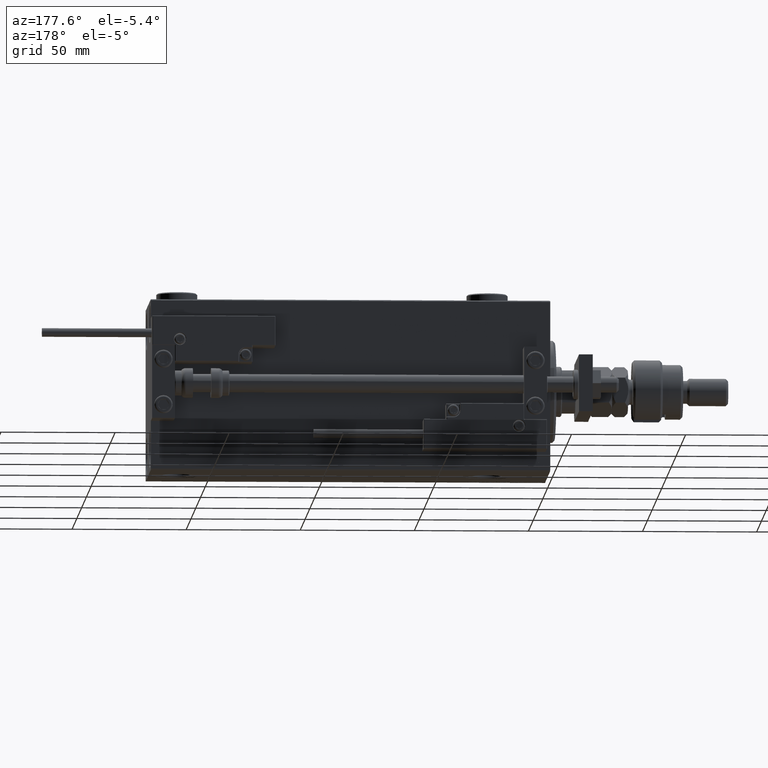
[diagram: clean part render]
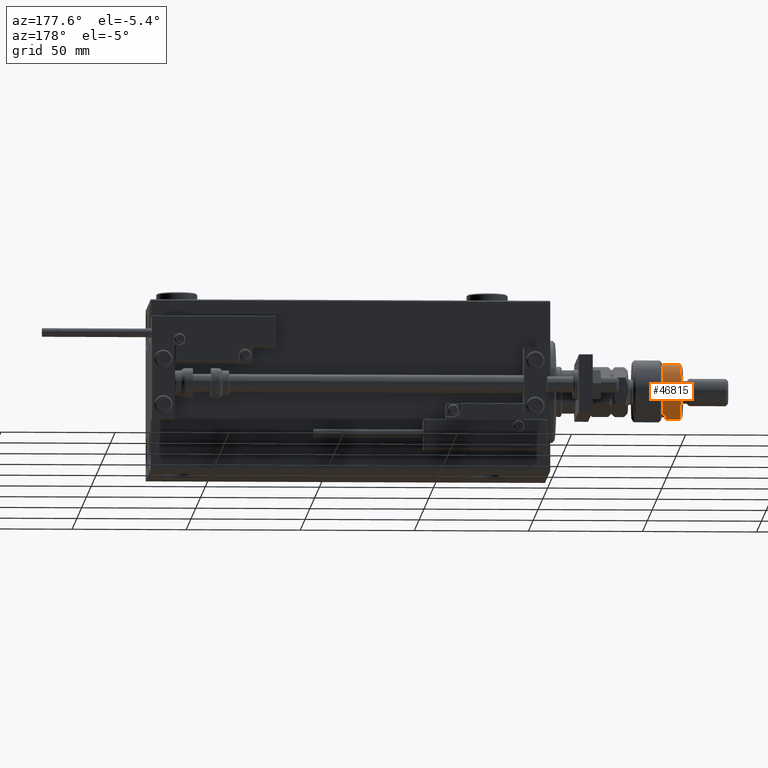
[diagram: same view with one face highlighted and labeled with its STEP entity id]
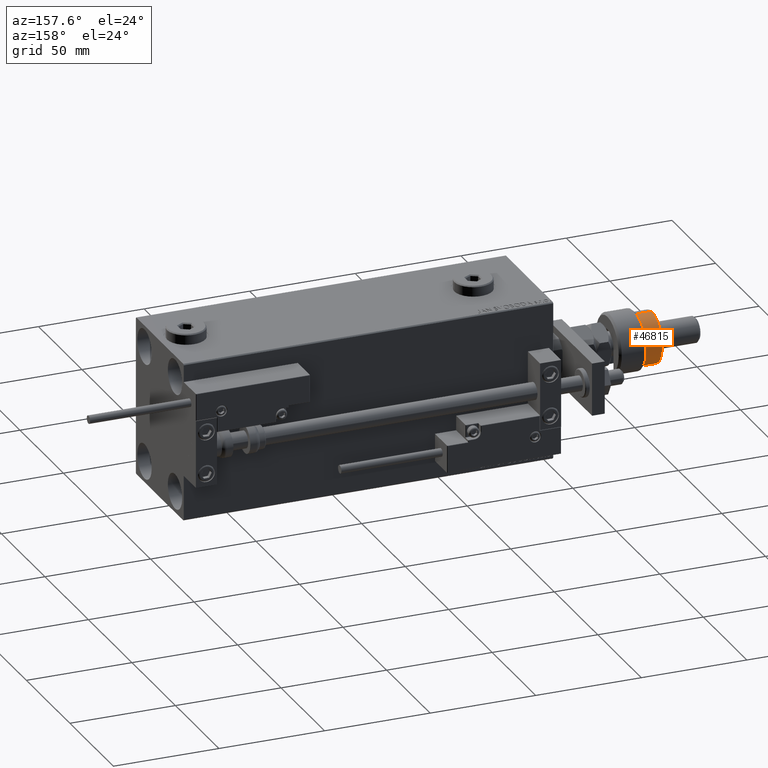
[diagram: same view with one face highlighted and labeled with its STEP entity id]
A machine part, auxiliary view. The second image highlights one B-rep face of the part: STEP entity #46815.
A second angle (auxiliary view) of the same face is appended — the face is thin or edge-on in the first view.
In plain terms, the highlighted cylindrical surface (edge-blend (fillet) strip) has radius 12 mm, axis along (1, -0, -0).
Its self-contained STEP definition (entity closure, byte-faithful):
#527 = VECTOR ( 'NONE', #36523, 1000.000000000000000 ) ;
#1006 = CARTESIAN_POINT ( 'NONE',  ( 0.000000000000000000, 0.000000000000000000, 22.00000000000000000 ) ) ;
#1198 = AXIS2_PLACEMENT_3D ( 'NONE', #1006, #29854, #25736 ) ;
#1712 = EDGE_CURVE ( 'NONE', #39050, #7614, #44789, .T. ) ;
#2827 = CIRCLE ( 'NONE', #22146, 12.00000000000000178 ) ;
#4000 = AXIS2_PLACEMENT_3D ( 'NONE', #19318, #6973, #11642 ) ;
#6484 = DIRECTION ( 'NONE',  ( -0.000000000000000000, -0.000000000000000000, -1.000000000000000000 ) ) ;
#6973 = DIRECTION ( 'NONE',  ( 0.000000000000000000, 0.000000000000000000, -1.000000000000000000 ) ) ;
#7614 = VERTEX_POINT ( 'NONE', #45409 ) ;
#9527 = CARTESIAN_POINT ( 'NONE',  ( 12.00000000000000178, 1.469576158976824144E-15, 22.00000000000000000 ) ) ;
#10031 = VECTOR ( 'NONE', #53170, 1000.000000000000000 ) ;
#10493 = DIRECTION ( 'NONE',  ( 0.000000000000000000, 0.000000000000000000, 1.000000000000000000 ) ) ;
#11642 = DIRECTION ( 'NONE',  ( 1.000000000000000000, 0.000000000000000000, 0.000000000000000000 ) ) ;
#12303 = AXIS2_PLACEMENT_3D ( 'NONE', #44304, #10493, #32187 ) ;
#12397 = EDGE_CURVE ( 'NONE', #7614, #36871, #18808, .T. ) ;
#13289 = EDGE_LOOP ( 'NONE', ( #43934, #47088, #31506, #25276, #35722, #30778 ) ) ;
#14521 = CIRCLE ( 'NONE', #4000, 12.00000000000000178 ) ;
#17432 = CARTESIAN_POINT ( 'NONE',  ( 12.00000000000000178, 1.469576158976824144E-15, 13.00000000000000000 ) ) ;
#18808 = LINE ( 'NONE', #49305, #10031 ) ;
#19318 = CARTESIAN_POINT ( 'NONE',  ( 0.000000000000000000, 0.000000000000000000, 20.99999999999998224 ) ) ;
#19619 = CARTESIAN_POINT ( 'NONE',  ( 12.00000000000000178, 1.469576158976824144E-15, 20.99999999999998224 ) ) ;
#20211 = VERTEX_POINT ( 'NONE', #49368 ) ;
#22146 = AXIS2_PLACEMENT_3D ( 'NONE', #45158, #40484, #24801 ) ;
#22419 = LINE ( 'NONE', #9527, #31905 ) ;
#24801 = DIRECTION ( 'NONE',  ( -1.000000000000000000, 0.000000000000000000, 0.000000000000000000 ) ) ;
#25276 = ORIENTED_EDGE ( 'NONE', *, *, #12397, .T. ) ;
#25736 = DIRECTION ( 'NONE',  ( -1.000000000000000000, 0.000000000000000000, 0.000000000000000000 ) ) ;
#27171 = LINE ( 'NONE', #48881, #527 ) ;
#28254 = VERTEX_POINT ( 'NONE', #19619 ) ;
#29854 = DIRECTION ( 'NONE',  ( -0.000000000000000000, -0.000000000000000000, -1.000000000000000000 ) ) ;
#30778 = ORIENTED_EDGE ( 'NONE', *, *, #51815, .F. ) ;
#31506 = ORIENTED_EDGE ( 'NONE', *, *, #1712, .T. ) ;
#31905 = VECTOR ( 'NONE', #6484, 1000.000000000000000 ) ;
#32187 = DIRECTION ( 'NONE',  ( 1.000000000000000000, 0.000000000000000000, 0.000000000000000000 ) ) ;
#33159 = CARTESIAN_POINT ( 'NONE',  ( -12.00000000000000178, 0.000000000000000000, 20.99999999999998224 ) ) ;
#33990 = FACE_OUTER_BOUND ( 'NONE', #13289, .T. ) ;
#35722 = ORIENTED_EDGE ( 'NONE', *, *, #39246, .F. ) ;
#36523 = DIRECTION ( 'NONE',  ( -0.000000000000000000, -0.000000000000000000, -1.000000000000000000 ) ) ;
#36703 = VERTEX_POINT ( 'NONE', #33159 ) ;
#36871 = VERTEX_POINT ( 'NONE', #46874 ) ;
#39050 = VERTEX_POINT ( 'NONE', #17432 ) ;
#39246 = EDGE_CURVE ( 'NONE', #20211, #36871, #2827, .T. ) ;
#40484 = DIRECTION ( 'NONE',  ( 0.000000000000000000, 0.000000000000000000, -1.000000000000000000 ) ) ;
#43934 = ORIENTED_EDGE ( 'NONE', *, *, #53673, .T. ) ;
#44304 = CARTESIAN_POINT ( 'NONE',  ( 0.000000000000000000, 0.000000000000000000, 13.00000000000000000 ) ) ;
#44789 = CIRCLE ( 'NONE', #12303, 12.00000000000000178 ) ;
#45158 = CARTESIAN_POINT ( 'NONE',  ( 0.000000000000000000, 0.000000000000000000, 14.50000000000000000 ) ) ;
#45409 = CARTESIAN_POINT ( 'NONE',  ( -10.39230484541326760, 6.000000000000000000, 13.00000000000000000 ) ) ;
#46815 = ADVANCED_FACE ( 'NONE', ( #33990 ), #49197, .T. ) ;
#46874 = CARTESIAN_POINT ( 'NONE',  ( -10.39230484541326582, 5.999999999999998224, 14.50000000000000000 ) ) ;
#46896 = EDGE_CURVE ( 'NONE', #28254, #39050, #22419, .T. ) ;
#47088 = ORIENTED_EDGE ( 'NONE', *, *, #46896, .T. ) ;
#48881 = CARTESIAN_POINT ( 'NONE',  ( -12.00000000000000178, 0.000000000000000000, 22.00000000000000000 ) ) ;
#49197 = CYLINDRICAL_SURFACE ( 'NONE', #1198, 12.00000000000000178 ) ;
#49305 = CARTESIAN_POINT ( 'NONE',  ( -10.39230484541326760, 6.000000000000000000, 22.00000000000000000 ) ) ;
#49368 = CARTESIAN_POINT ( 'NONE',  ( -12.00000000000000178, 0.000000000000000000, 14.50000000000000000 ) ) ;
#51815 = EDGE_CURVE ( 'NONE', #36703, #20211, #27171, .T. ) ;
#53170 = DIRECTION ( 'NONE',  ( 0.000000000000000000, 0.000000000000000000, 1.000000000000000000 ) ) ;
#53673 = EDGE_CURVE ( 'NONE', #36703, #28254, #14521, .T. ) ;